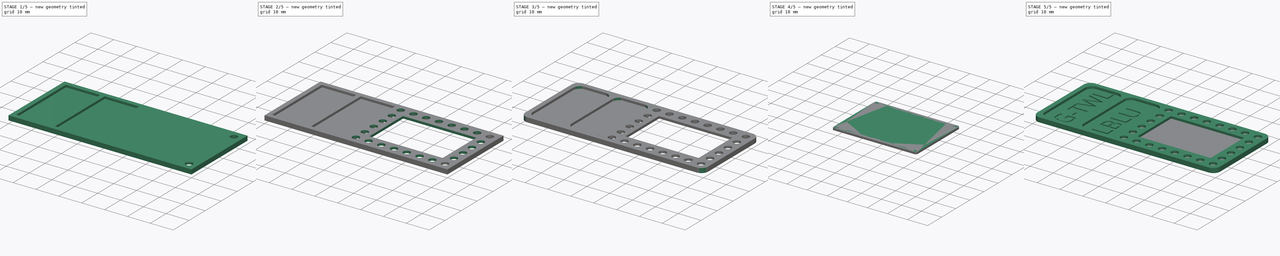
[diagram: build sequence overview — one tinted view per stage of 5, left to right]
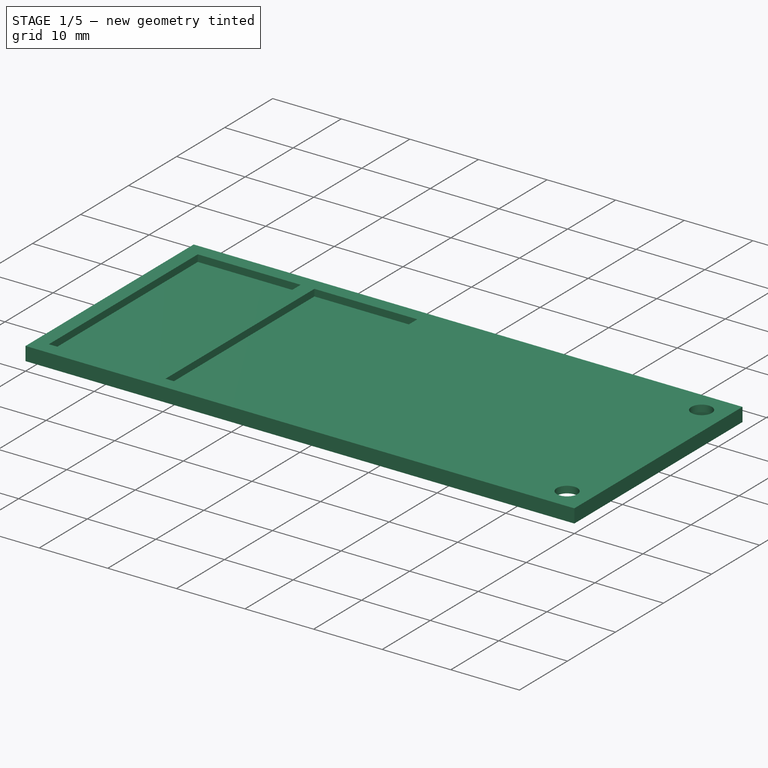
[diagram: stage 1 of 5 — iso view after this stage's code; geometry added in this stage tinted green]
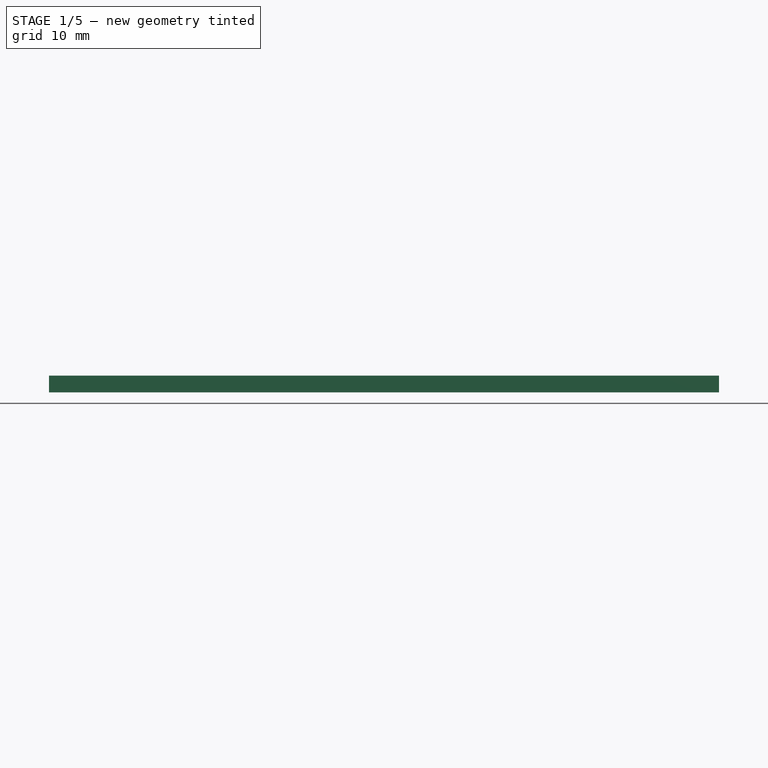
[diagram: stage 1 of 5 — front view after this stage's code; geometry added in this stage tinted green]
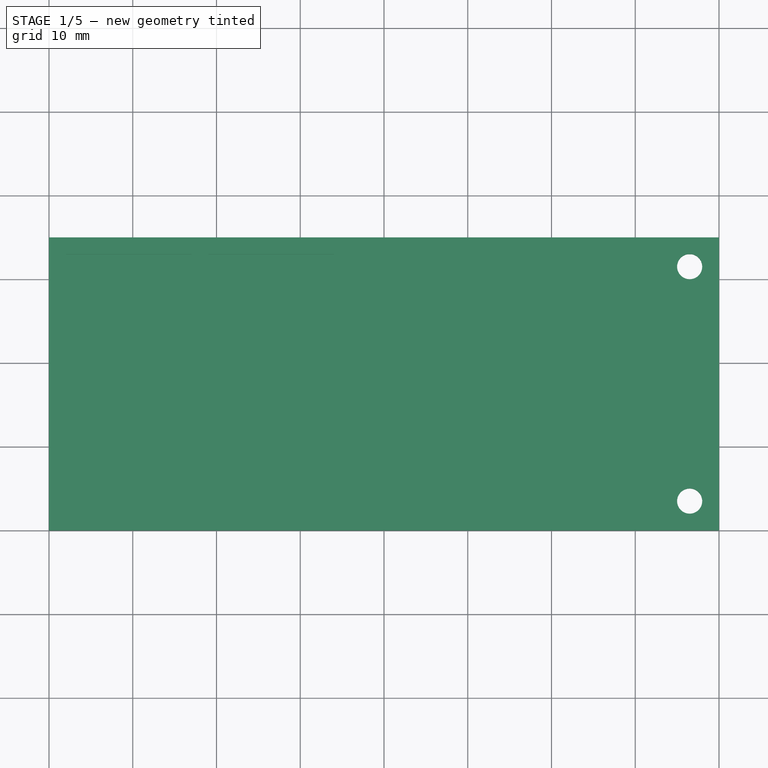
[diagram: stage 1 of 5 — top view after this stage's code; geometry added in this stage tinted green]
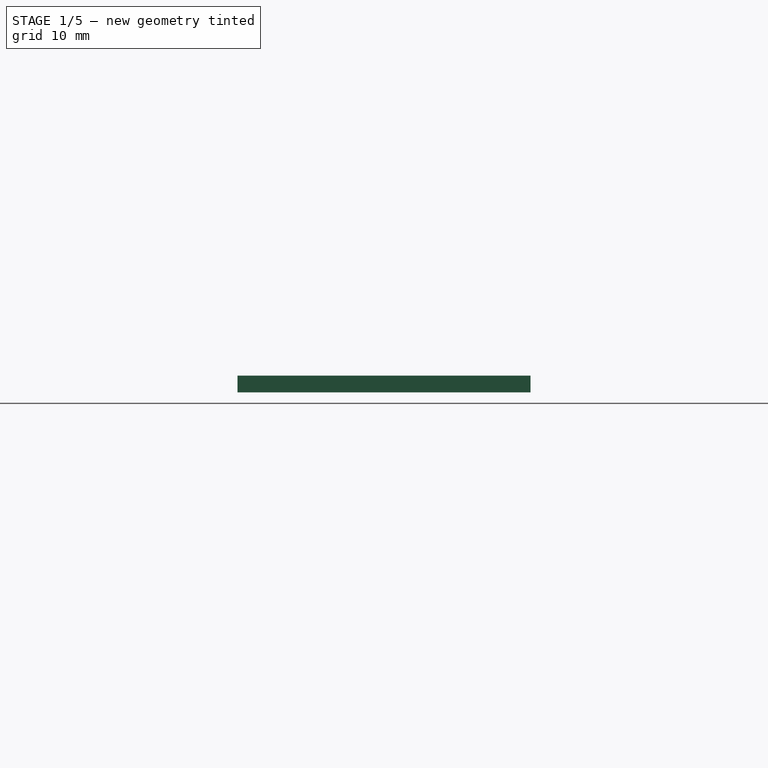
[diagram: stage 1 of 5 — right view after this stage's code; geometry added in this stage tinted green]
FCSTD DOCUMENT  (FreeCAD 0.21R33668 +26 (Git))
Label: Material Swatch
License: All rights reserved
LicenseURL: https://en.wikipedia.org/wiki/All_rights_reserved
objects: Sketcher::SketchObject×9, PartDesign::Pocket×9, PartDesign::LinearPattern×4, PartDesign::Fillet×3, PartDesign::Body×3, PartDesign::Pad×2, Part::Part2DObjectPython×2, PartDesign::ShapeBinder×2, PartDesign::FeatureBase×1
note: 49 computed .brp shape members not serialized (recipe doc carries the construction recipe); baked Part::Feature solids carry a one-line shape summary decoded from their .brp

FEATURE [Sketcher::SketchObject] Sketch
  FullyConstrained = true
  MapMode = 5
  Support = -> [XY_Plane]
  sketch-geometry (4):
    g0: LineSegment StartX=0 StartY=0 StartZ=0 EndX=80 EndY=0 EndZ=0
    g1: LineSegment StartX=80 StartY=0 StartZ=0 EndX=80 EndY=35 EndZ=0
    g2: LineSegment StartX=80 StartY=35 StartZ=0 EndX=0 EndY=35 EndZ=0
    g3: LineSegment StartX=0 StartY=35 StartZ=0 EndX=0 EndY=0 EndZ=0
  constraints (11):
    c: Coincident(g0,g1)
    c: Coincident(g1,g2)
    c: Coincident(g2,g3)
    c: Coincident(g3,g0)
    c: Horizontal(g0)
    c: Horizontal(g2)
    c: Vertical(g1)
    c: Vertical(g3)
    c: Coincident(g0,g-1)
    c: Distance(g0) = 80
    c: Distance(g1) = 35
FEATURE [PartDesign::Pad] Pad
  Direction = (0,0,1)
  Length = 2
  Length2 = 10
  Profile = -> Sketch
  ReferenceAxis = -> Sketch [N_Axis]
  Type = 0
FEATURE [Sketcher::SketchObject] Sketch001
  ExternalGeometry = -> [Pad]
  FullyConstrained = true
  MapMode = 5
  Placement = pos=(0,0,2) rot=(0,0,1;0rad)
  Support = -> [Pad]
  sketch-geometry (17):
    g0: LineSegment StartX=2 StartY=33 StartZ=0 EndX=17 EndY=33 EndZ=0
    g1: LineSegment StartX=17 StartY=33 StartZ=0 EndX=17 EndY=2 EndZ=0
    g2: LineSegment StartX=17 StartY=2 StartZ=0 EndX=2 EndY=2 EndZ=0
    g3: LineSegment StartX=2 StartY=2 StartZ=0 EndX=2 EndY=33 EndZ=0
    g4: LineSegment StartX=19 StartY=33 StartZ=0 EndX=34 EndY=33 EndZ=0
    g5: LineSegment StartX=34 StartY=33 StartZ=0 EndX=34 EndY=2 EndZ=0
    g6: LineSegment StartX=34 StartY=2 StartZ=0 EndX=19 EndY=2 EndZ=0
    g7: LineSegment StartX=19 StartY=2 StartZ=0 EndX=19 EndY=33 EndZ=0
    g8: LineSegment StartX=0 StartY=35 StartZ=0 EndX=2 EndY=35 EndZ=0
    g9: LineSegment StartX=2 StartY=35 StartZ=0 EndX=2 EndY=33 EndZ=0
    g10: LineSegment StartX=2 StartY=33 StartZ=0 EndX=0 EndY=33 EndZ=0
    g11: LineSegment StartX=0 StartY=33 StartZ=0 EndX=0 EndY=35 EndZ=0
    g12: LineSegment StartX=0 StartY=0 StartZ=0 EndX=2 EndY=0 EndZ=0
    g13: LineSegment StartX=2 StartY=0 StartZ=0 EndX=2 EndY=2 EndZ=0
    g14: LineSegment StartX=2 StartY=2 StartZ=0 EndX=0 EndY=2 EndZ=0
    g15: LineSegment StartX=0 StartY=2 StartZ=0 EndX=0 EndY=0 EndZ=0
    g16: LineSegment StartX=17 StartY=33 StartZ=0 EndX=19 EndY=33 EndZ=0
  constraints (46):
    c: Coincident(g0,g1)
    c: Coincident(g1,g2)
    c: Coincident(g2,g3)
    c: Coincident(g3,g0)
    c: Horizontal(g0)
    c: Horizontal(g2)
    c: Vertical(g1)
    c: Vertical(g3)
    c: Coincident(g4,g5)
    c: Coincident(g5,g6)
    c: Coincident(g6,g7)
    c: Coincident(g7,g4)
    c: Horizontal(g4)
    c: Horizontal(g6)
    c: Vertical(g5)
    c: Vertical(g7)
    c: Coincident(g8,g9)
    c: Coincident(g9,g10)
    c: Coincident(g10,g11)
    c: Coincident(g11,g8)
    c: Horizontal(g8)
    c: Horizontal(g10)
    c: Vertical(g9)
    c: Vertical(g11)
    c: Coincident(g8,g-3)
    c: Coincident(g9,g0)
    c: Coincident(g12,g13)
    c: Coincident(g13,g14)
    c: Coincident(g14,g15)
    c: Coincident(g15,g12)
    c: Horizontal(g12)
    c: Horizontal(g14)
    c: Vertical(g13)
    c: Vertical(g15)
    c: Coincident(g12,g-3)
    c: Coincident(g13,g2)
    c: Equal(g9,g10)
    c: Equal(g9,g13)
    c: Distance(g10) = 2
    c: Distance(g0) = 15
    c: Distance(g4) = 15
    c: Coincident(g16,g0)
    c: Coincident(g16,g4)
    c: Horizontal(g16)
    c: Equal(g7,g1)
    c: Equal(g16,g10)
FEATURE [PartDesign::Pocket] Pocket
  BaseFeature = -> Pad
  Direction = (0,0,-1)
  Length = 1
  Length2 = 5
  Profile = -> Sketch001
  ReferenceAxis = -> Sketch001 [N_Axis]
  Type = 0
FEATURE [Sketcher::SketchObject] Sketch002
  ExternalGeometry = -> [Pocket]
  FullyConstrained = true
  MapMode = 5
  Placement = pos=(0,0,0) rot=(1,0,0;3.14159rad)
  Support = -> [Pocket]
  sketch-geometry (6):
    g0: LineSegment StartX=36 StartY=-2 StartZ=0 EndX=78 EndY=-2 EndZ=0
    g1: LineSegment StartX=78 StartY=-2 StartZ=0 EndX=78 EndY=-33 EndZ=0
    g2: LineSegment StartX=78 StartY=-33 StartZ=0 EndX=36 EndY=-33 EndZ=0
    g3: LineSegment StartX=36 StartY=-33 StartZ=0 EndX=36 EndY=-2 EndZ=0
    g4: LineSegment StartX=34 StartY=-2 StartZ=0 EndX=36 EndY=-2 EndZ=0
    g5: LineSegment StartX=78 StartY=-2 StartZ=0 EndX=80 EndY=-2 EndZ=0
  constraints (17):
    c: Coincident(g0,g1)
    c: Coincident(g1,g2)
    c: Coincident(g2,g3)
    c: Coincident(g3,g0)
    c: Horizontal(g0)
    c: Horizontal(g2)
    c: Vertical(g1)
    c: Vertical(g3)
    c: Coincident(g4,g-3)
    c: Coincident(g4,g0)
    c: Horizontal(g4)
    c: Coincident(g5,g0)
    c: PointOnObject(g5,g-4)
    c: Equal(g4,g5)
    c: Horizontal(g5)
    c: Distance(g4) = 2
    c: Equal(g-3,g3)
FEATURE [PartDesign::Pocket] Pocket001
  BaseFeature = -> Pocket
  Direction = (0,0,1)
  Length = 1
  Length2 = 5
  Profile = -> Sketch002
  ReferenceAxis = -> Sketch002 [N_Axis]
  Type = 0
FEATURE [Sketcher::SketchObject] Sketch003
  ExternalGeometry = -> [Pocket001]
  FullyConstrained = true
  MapMode = 5
  Placement = pos=(0,0,1) rot=(1,0,0;3.14159rad)
  Support = -> [Pocket001]
  sketch-geometry (10):
    g0: Circle CenterX=76.5 CenterY=-3.5 CenterZ=0 NormalX=0 NormalY=0 NormalZ=1 AngleXU=0 Radius=1.5
    g1: LineSegment StartX=78 StartY=-2 StartZ=0 EndX=76.5 EndY=-2 EndZ=0
    g2: LineSegment StartX=76.5 StartY=-2 StartZ=0 EndX=76.5 EndY=-3.5 EndZ=0
    g3: LineSegment StartX=76.5 StartY=-3.5 StartZ=0 EndX=78 EndY=-3.5 EndZ=0
    g4: LineSegment StartX=78 StartY=-3.5 StartZ=0 EndX=78 EndY=-2 EndZ=0
    g5: LineSegment StartX=78 StartY=-33 StartZ=0 EndX=76.5 EndY=-33 EndZ=0
    g6: LineSegment StartX=76.5 StartY=-33 StartZ=0 EndX=76.5 EndY=-31.5 EndZ=0
    g7: LineSegment StartX=76.5 StartY=-31.5 StartZ=0 EndX=78 EndY=-31.5 EndZ=0
    g8: LineSegment StartX=78 StartY=-31.5 StartZ=0 EndX=78 EndY=-33 EndZ=0
    g9: Circle CenterX=76.5 CenterY=-31.5 CenterZ=0 NormalX=0 NormalY=0 NormalZ=1 AngleXU=0 Radius=1.5
  constraints (26):
    c: Coincident(g1,g2)
    c: Coincident(g2,g3)
    c: Coincident(g3,g4)
    c: Coincident(g4,g1)
    c: Horizontal(g1)
    c: Horizontal(g3)
    c: Vertical(g2)
    c: Vertical(g4)
    c: Coincident(g1,g-3)
    c: Coincident(g2,g0)
    c: Equal(g2,g3)
    c: Coincident(g5,g6)
    c: Coincident(g6,g7)
    c: Coincident(g7,g8)
    c: Coincident(g8,g5)
    c: Horizontal(g5)
    c: Horizontal(g7)
    c: Vertical(g6)
    c: Vertical(g8)
    c: Coincident(g5,g-4)
    c: Coincident(g9,g6)
    c: Equal(g6,g7)
    c: Equal(g3,g7)
    c: Equal(g9,g0)
    c: Diameter(g0) = 3
    c: Tangent(g0,g-3)
FEATURE [PartDesign::Pocket] Pocket002
  BaseFeature = -> Pocket001
  Direction = (0,0,1)
  Length = 5
  Length2 = 5
  Profile = -> Sketch003
  ReferenceAxis = -> Sketch003 [N_Axis]
  Type = 0
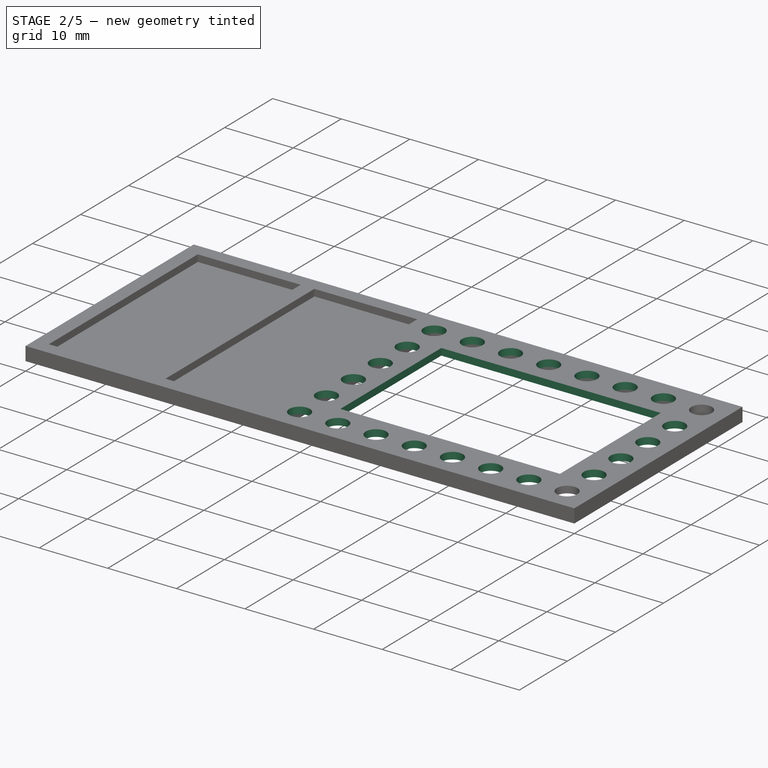
[diagram: stage 2 of 5 — iso view after this stage's code; geometry added in this stage tinted green]
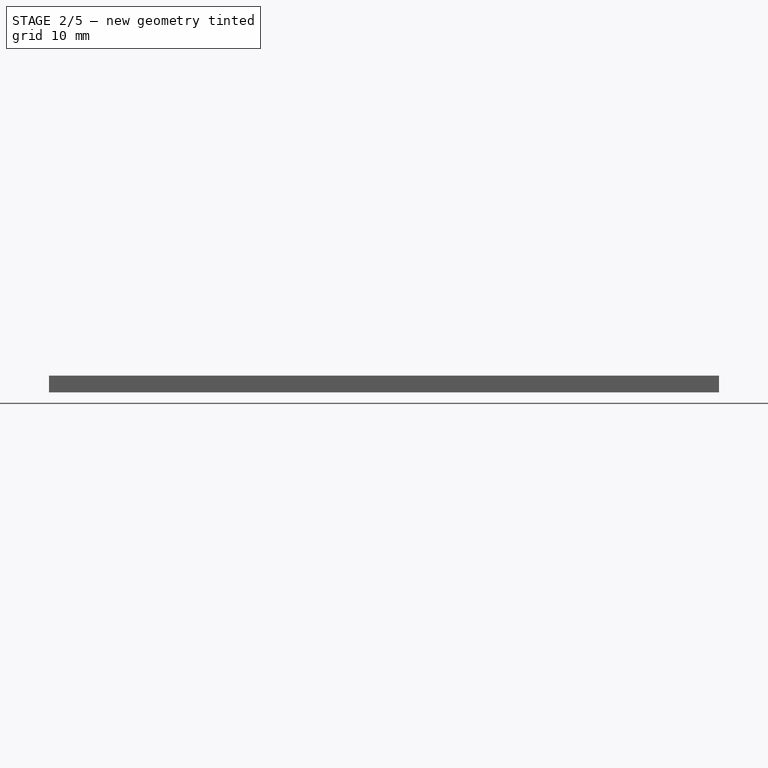
[diagram: stage 2 of 5 — front view after this stage's code; geometry added in this stage tinted green]
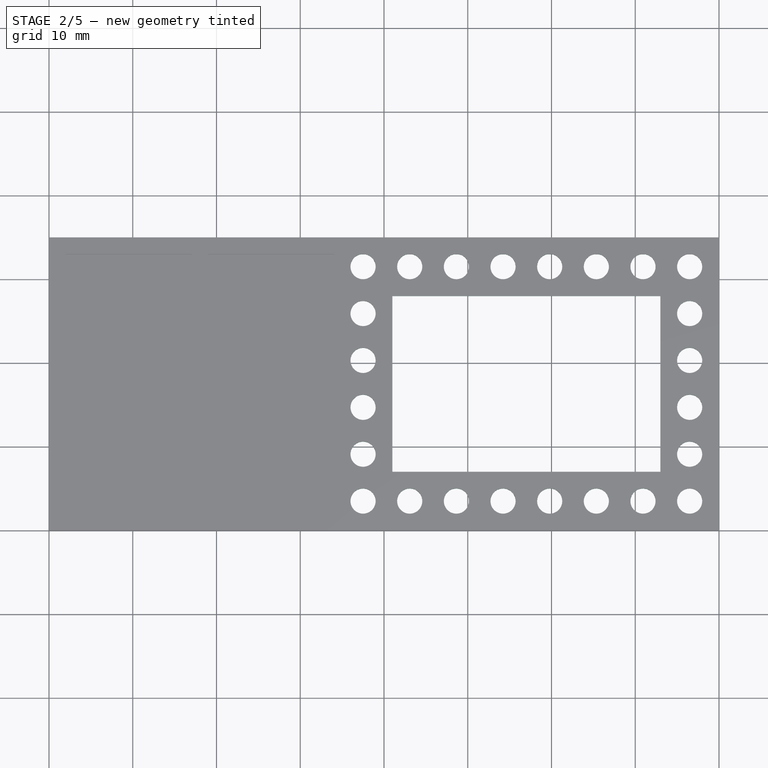
[diagram: stage 2 of 5 — top view after this stage's code; geometry added in this stage tinted green]
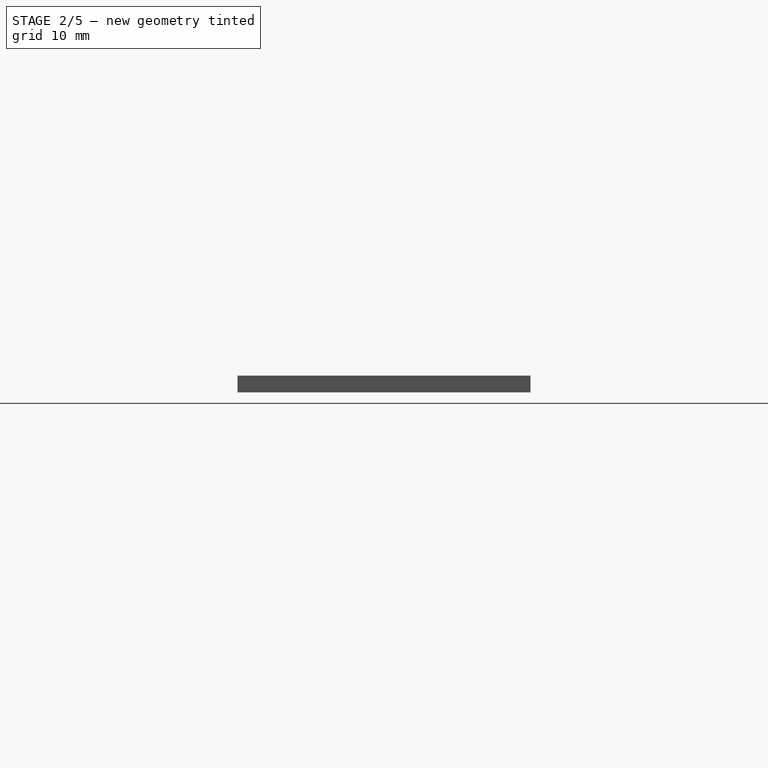
[diagram: stage 2 of 5 — right view after this stage's code; geometry added in this stage tinted green]
FEATURE [PartDesign::LinearPattern] LinearPattern
  BaseFeature = -> Pocket002
  Direction = -> Sketch003 [H_Axis]
  Length = 39
  Occurrences = 8
  Originals = -> [Pocket002]
  Reversed = true
FEATURE [Sketcher::SketchObject] Sketch004
  ExternalGeometry = -> [LinearPattern]
  FullyConstrained = true
  MapMode = 5
  Placement = pos=(0,0,1) rot=(1,0,0;3.14159rad)
  Support = -> [LinearPattern]
  sketch-geometry (2):
    g0: Circle CenterX=37.5 CenterY=-3.5 CenterZ=0 NormalX=0 NormalY=0 NormalZ=1 AngleXU=0 Radius=1.5
    g1: Circle CenterX=76.5 CenterY=-3.5 CenterZ=0 NormalX=0 NormalY=0 NormalZ=1 AngleXU=0 Radius=1.5
  constraints (4):
    c: Coincident(g0,g-3)
    c: PointOnObject(g-3,g0)
    c: Coincident(g1,g-4)
    c: PointOnObject(g-4,g1)
FEATURE [PartDesign::Pocket] Pocket003
  BaseFeature = -> LinearPattern
  Direction = (0,0,1)
  Length = 5
  Length2 = 5
  Profile = -> Sketch004
  ReferenceAxis = -> Sketch004 [N_Axis]
  Type = 0
FEATURE [PartDesign::LinearPattern] LinearPattern001
  BaseFeature = -> Pocket003
  Direction = -> Sketch004 [V_Axis]
  Length = 28
  Occurrences = 6
  Originals = -> [Pocket003]
  Reversed = true
FEATURE [Sketcher::SketchObject] Sketch005
  ExternalGeometry = -> [LinearPattern001]
  FullyConstrained = true
  MapMode = 5
  Placement = pos=(0,0,1) rot=(1,0,0;3.14159rad)
  Support = -> [LinearPattern001]
  sketch-geometry (8):
    g0: LineSegment StartX=41 StartY=-7 StartZ=0 EndX=73 EndY=-7 EndZ=0
    g1: LineSegment StartX=73 StartY=-7 StartZ=0 EndX=73 EndY=-28 EndZ=0
    g2: LineSegment StartX=73 StartY=-28 StartZ=0 EndX=41 EndY=-28 EndZ=0
    g3: LineSegment StartX=41 StartY=-28 StartZ=0 EndX=41 EndY=-7 EndZ=0
    g4: LineSegment StartX=43.0714 StartY=-5 StartZ=0 EndX=43.0714 EndY=-7 EndZ=0
    g5: LineSegment StartX=39 StartY=-9.1 StartZ=0 EndX=41 EndY=-9.1 EndZ=0
    g6: LineSegment StartX=70.9286 StartY=-30 StartZ=0 EndX=70.9286 EndY=-28 EndZ=0
    g7: LineSegment StartX=75 StartY=-25.9 StartZ=0 EndX=73 EndY=-25.9 EndZ=0
  constraints (27):
    c: Coincident(g0,g1)
    c: Coincident(g1,g2)
    c: Coincident(g2,g3)
    c: Coincident(g3,g0)
    c: Horizontal(g0)
    c: Horizontal(g2)
    c: Vertical(g1)
    c: Vertical(g3)
    c: PointOnObject(g4,g-3)
    c: PointOnObject(g4,g0)
    c: Vertical(g4)
    c: Coincident(g5,g-4)
    c: PointOnObject(g5,g3)
    c: Horizontal(g5)
    c: PointOnObject(g6,g-5)
    c: PointOnObject(g6,g2)
    c: Vertical(g6)
    c: PointOnObject(g7,g-6)
    c: PointOnObject(g7,g1)
    c: Horizontal(g7)
    c: Perpendicular(g-6,g7)
    c: Perpendicular(g-5,g6)
    c: Perpendicular(g-3,g4)
    c: Equal(g4,g5)
    c: Equal(g6,g7)
    c: Equal(g7,g4)
    c: Distance(g4) = 2
FEATURE [PartDesign::Pocket] Pocket004
  BaseFeature = -> LinearPattern001
  Direction = (0,0,1)
  Length = 5
  Length2 = 5
  Profile = -> Sketch005
  ReferenceAxis = -> Sketch005 [N_Axis]
  Type = 0
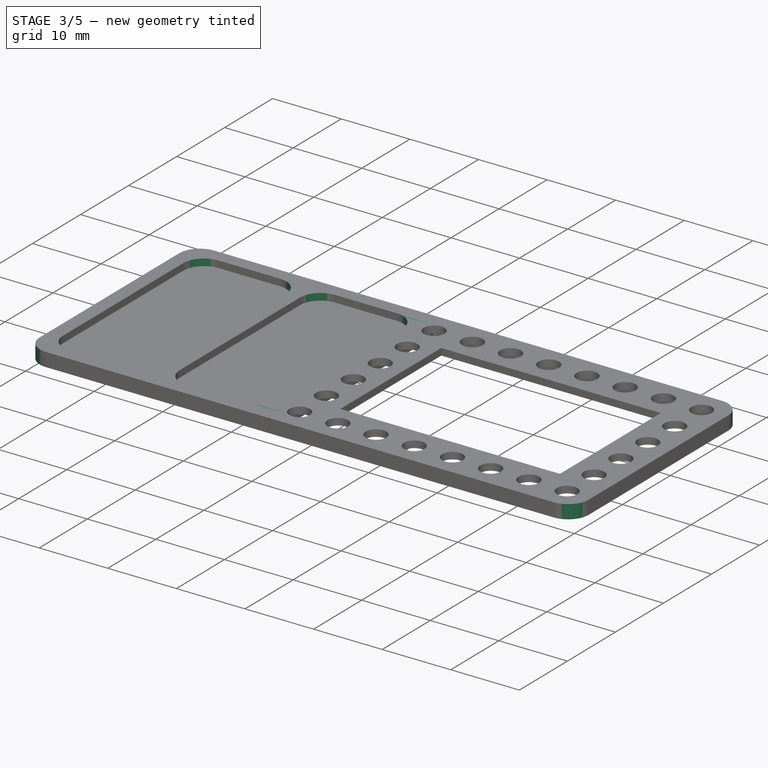
[diagram: stage 3 of 5 — iso view after this stage's code; geometry added in this stage tinted green]
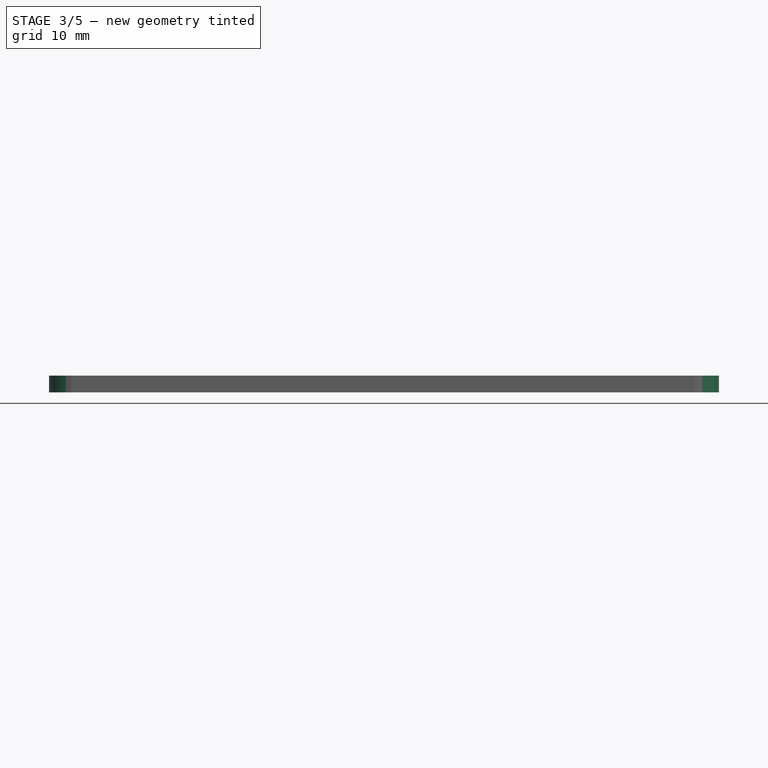
[diagram: stage 3 of 5 — front view after this stage's code; geometry added in this stage tinted green]
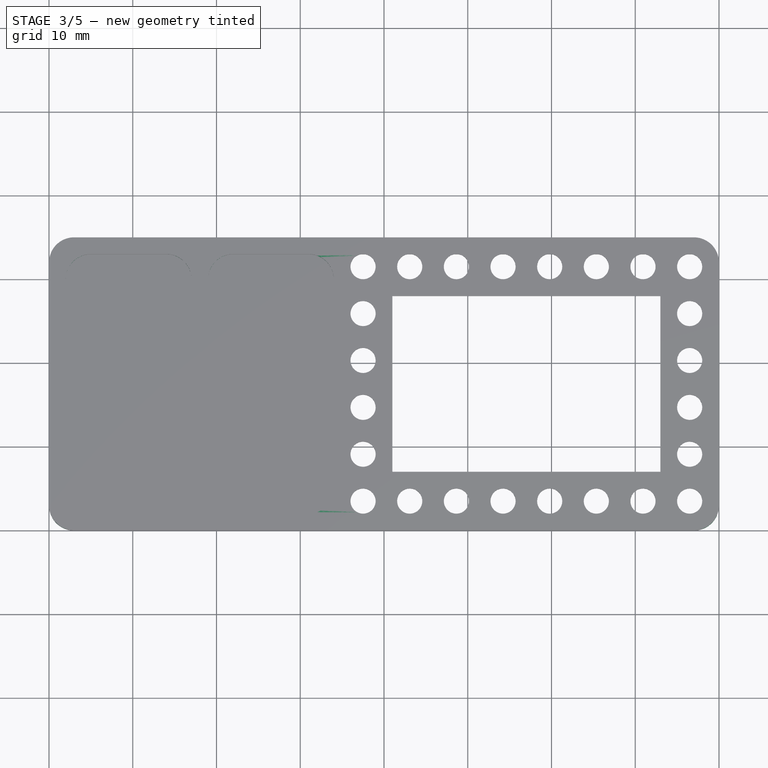
[diagram: stage 3 of 5 — top view after this stage's code; geometry added in this stage tinted green]
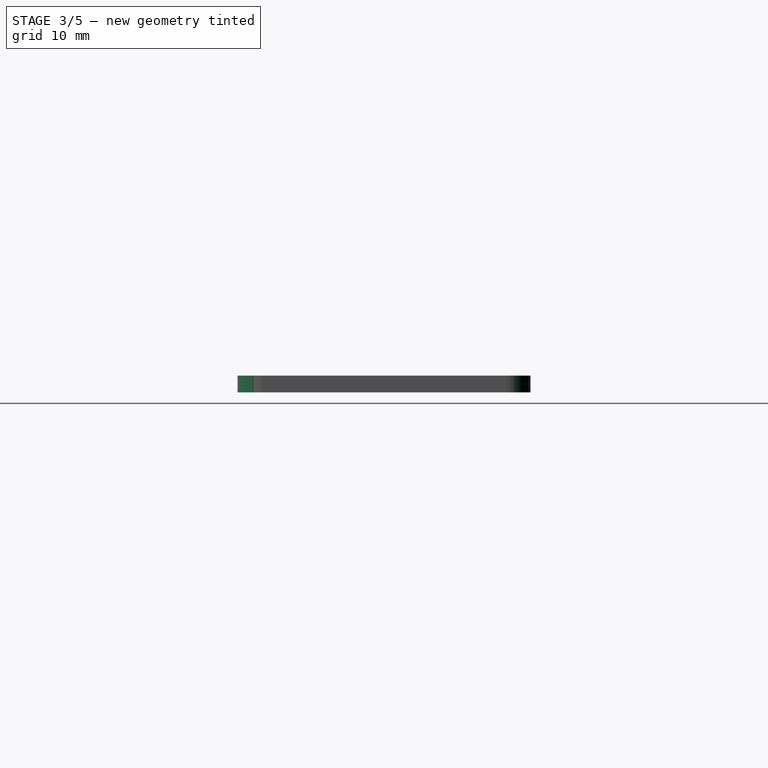
[diagram: stage 3 of 5 — right view after this stage's code; geometry added in this stage tinted green]
FEATURE [PartDesign::Fillet] Fillet
  Base = -> Pocket004 [Edge2,Edge8,Edge5,Edge1]
  BaseFeature = -> Pocket004
  Radius = 3
  SupportTransform = false
  UseAllEdges = false
FEATURE [PartDesign::Fillet] Fillet001
  Base = -> Fillet [Edge66,Edge76,Edge84,Edge65]
  BaseFeature = -> Fillet
  Radius = 1
  SupportTransform = false
  UseAllEdges = false
FEATURE [PartDesign::Fillet] Fillet002
  Base = -> Fillet001 [Edge192,Edge196,Edge204,Edge200,Edge191,Edge199,Edge194,Edge202]
  BaseFeature = -> Fillet001
  Radius = 3
  SupportTransform = false
  UseAllEdges = false
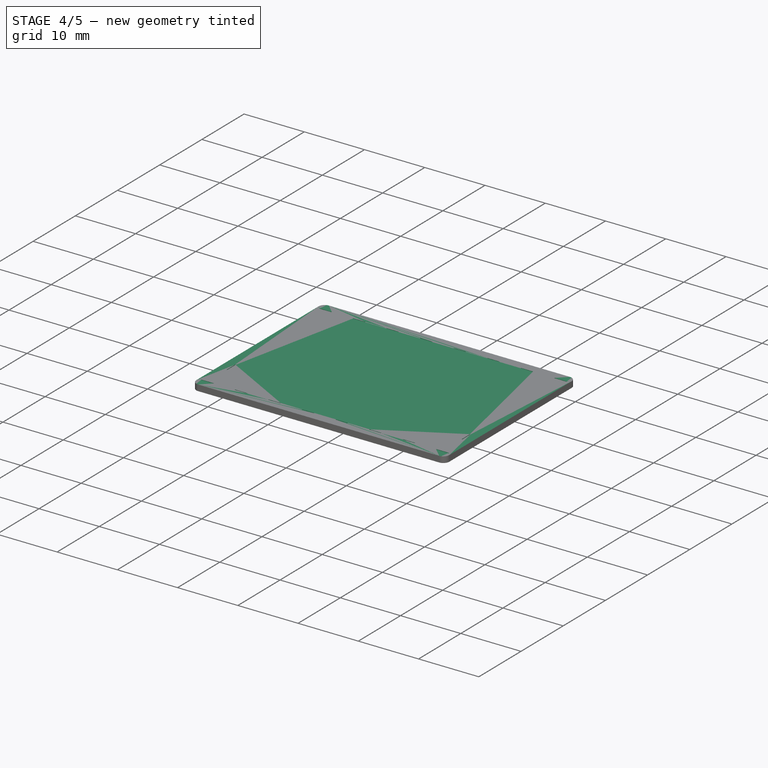
[diagram: stage 4 of 5 — iso view after this stage's code; geometry added in this stage tinted green]
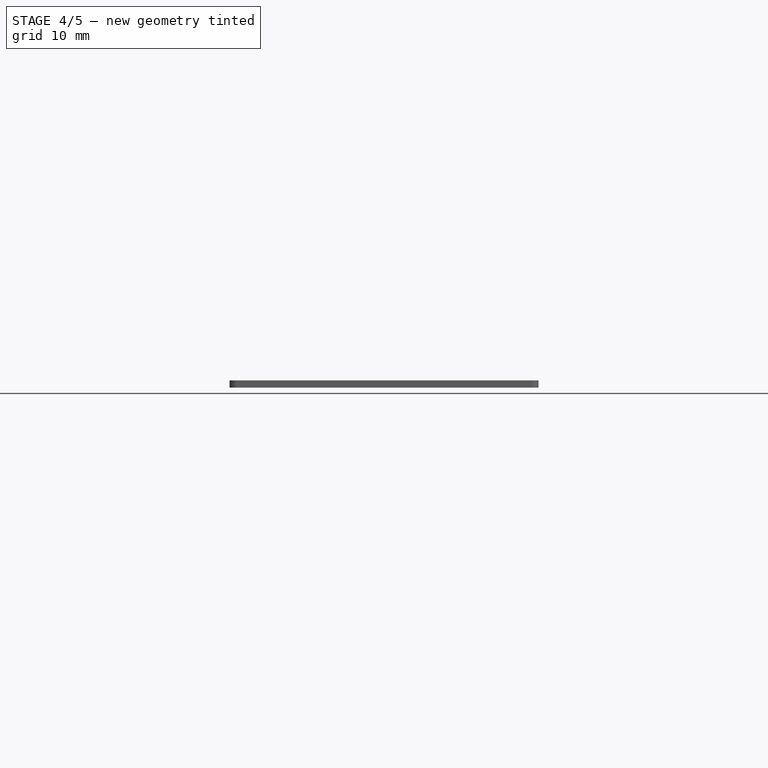
[diagram: stage 4 of 5 — front view after this stage's code; geometry added in this stage tinted green]
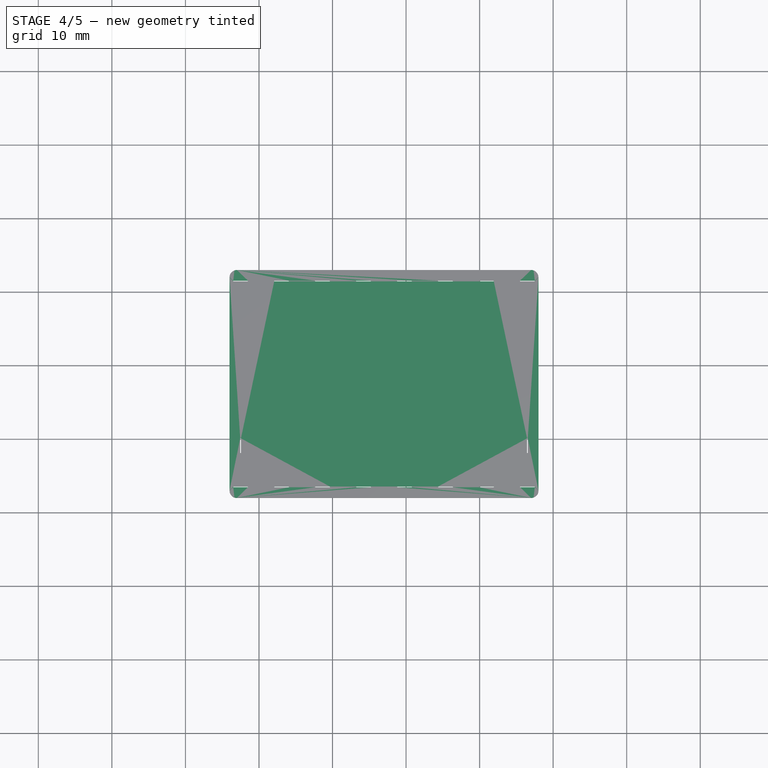
[diagram: stage 4 of 5 — top view after this stage's code; geometry added in this stage tinted green]
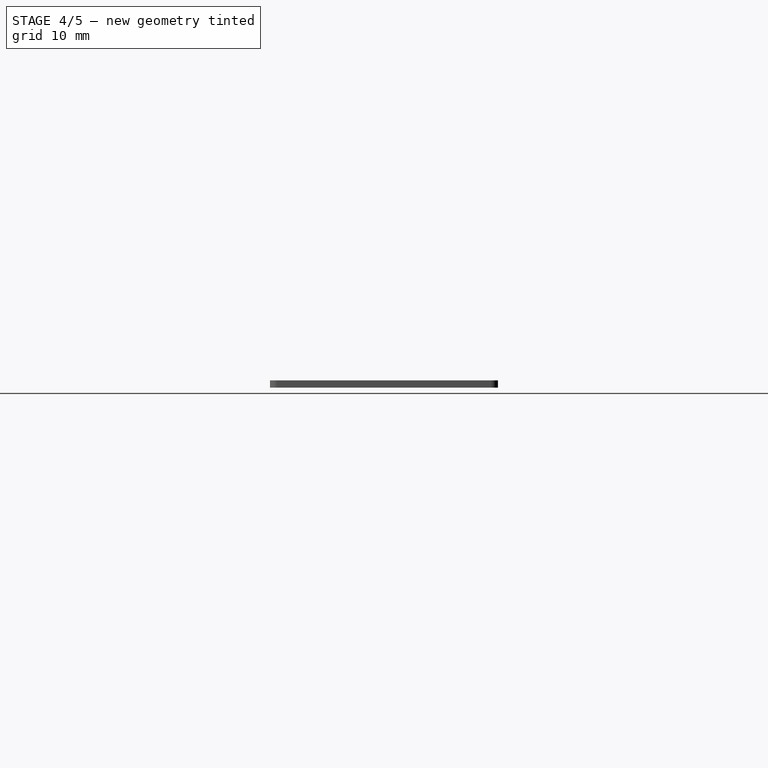
[diagram: stage 4 of 5 — right view after this stage's code; geometry added in this stage tinted green]
FEATURE [PartDesign::Body] Body001  label="Labeled Swatch"
  Group = -> [Clone,ShapeString,ShapeString001,Pocket005,Pocket006]
  Origin = -> Origin001
  Placement = pos=(0,-50,0) rot=(0,0,1;0rad)
  Tip = -> Pocket006
FEATURE [PartDesign::ShapeBinder] ShapeBinder
  Support = -> [Fillet002]
  TraceSupport = false
FEATURE [Sketcher::SketchObject] Sketch006
  ExternalGeometry = -> [ShapeBinder]
  FullyConstrained = true
  MapMode = 5
  Placement = pos=(0,0,0) rot=(1,0,0;3.14159rad)
  Support = -> [ShapeBinder]
  sketch-geometry (8):
    g0: LineSegment StartX=37 StartY=-2 StartZ=0 EndX=77 EndY=-2 EndZ=0
    g1: LineSegment StartX=78 StartY=-3 StartZ=0 EndX=78 EndY=-32 EndZ=0
    g2: LineSegment StartX=77 StartY=-33 StartZ=0 EndX=37 EndY=-33 EndZ=0
    g3: LineSegment StartX=36 StartY=-32 StartZ=0 EndX=36 EndY=-3 EndZ=0
    g4: ArcOfCircle CenterX=37 CenterY=-3 CenterZ=0 NormalX=0 NormalY=0 NormalZ=1 AngleXU=0 Radius=1 StartAngle=1.5708 EndAngle=3.14159
    g5: ArcOfCircle CenterX=77 CenterY=-3 CenterZ=0 NormalX=0 NormalY=0 NormalZ=1 AngleXU=0 Radius=1 StartAngle=0 EndAngle=1.5708
    g6: ArcOfCircle CenterX=77 CenterY=-32 CenterZ=0 NormalX=0 NormalY=0 NormalZ=1 AngleXU=0 Radius=1 StartAngle=4.71239 EndAngle=6.28319
    g7: ArcOfCircle CenterX=37 CenterY=-32 CenterZ=0 NormalX=0 NormalY=0 NormalZ=1 AngleXU=0 Radius=1 StartAngle=3.14159 EndAngle=4.71239
  constraints (14):
    c: Tangent(g3,g4) = 1.5708
    c: Tangent(g0,g4) = 1.5708
    c: Tangent(g0,g5) = 1.5708
    c: Tangent(g1,g5) = 1.5708
    c: Tangent(g1,g6) = 1.5708
    c: Tangent(g2,g6) = 1.5708
    c: Tangent(g3,g7) = 1.5708
    c: Tangent(g2,g7) = 1.5708
    c: Coincident(g3,g-3)
    c: Coincident(g0,g-4)
    c: Coincident(g1,g-5)
    c: Coincident(g1,g-5)
    c: Coincident(g2,g-6)
    c: Coincident(g3,g-3)
FEATURE [PartDesign::Pad] Pad001
  Direction = (0,0,-1)
  Length = 1
  Length2 = 10
  Profile = -> Sketch006
  ReferenceAxis = -> Sketch006 [N_Axis]
  Reversed = true
  Type = 0
FEATURE [PartDesign::ShapeBinder] ShapeBinder001
  Support = -> [Fillet002]
  TraceSupport = false
FEATURE [Sketcher::SketchObject] Sketch007
  ExternalGeometry = -> [ShapeBinder001]
  FullyConstrained = true
  MapMode = 5
  Placement = pos=(0,0,1) rot=(0,0,1;0rad)
  Support = -> [Pad001]
  sketch-geometry (10):
    g0: LineSegment StartX=36.5 StartY=3.45 StartZ=0 EndX=36.5 EndY=3.55 EndZ=0
    g1: LineSegment StartX=36.5 StartY=3.55 StartZ=0 EndX=38.5 EndY=3.55 EndZ=0
    g2: LineSegment StartX=38.5 StartY=3.55 StartZ=0 EndX=38.5 EndY=3.45 EndZ=0
    g3: LineSegment StartX=38.5 StartY=3.45 StartZ=0 EndX=36.5 EndY=3.45 EndZ=0
    g4: GeomPoint X=37.5 Y=3.5 Z=0
    g5: LineSegment StartX=36.5 StartY=31.45 StartZ=0 EndX=36.5 EndY=31.55 EndZ=0
    g6: LineSegment StartX=36.5 StartY=31.55 StartZ=0 EndX=38.5 EndY=31.55 EndZ=0
    g7: LineSegment StartX=38.5 StartY=31.55 StartZ=0 EndX=38.5 EndY=31.45 EndZ=0
    g8: LineSegment StartX=38.5 StartY=31.45 StartZ=0 EndX=36.5 EndY=31.45 EndZ=0
    g9: GeomPoint X=37.5 Y=31.5 Z=0
  constraints (24):
    c: Coincident(g0,g1)
    c: Coincident(g1,g2)
    c: Coincident(g2,g3)
    c: Coincident(g3,g0)
    c: Horizontal(g1)
    c: Horizontal(g3)
    c: Vertical(g0)
    c: Vertical(g2)
    c: Symmetric(g1,g0,g4)
    c: Coincident(g4,g-4)
    c: Coincident(g5,g6)
    c: Coincident(g6,g7)
    c: Coincident(g7,g8)
    c: Coincident(g8,g5)
    c: Horizontal(g6)
    c: Horizontal(g8)
    c: Vertical(g5)
    c: Vertical(g7)
    c: Symmetric(g6,g5,g9)
    c: Coincident(g9,g-3)
    c: Equal(g2,g7)
    c: Distance(g7) = 0.1
    c: Equal(g1,g8)
    c: Distance(g6) = 2
FEATURE [PartDesign::Pocket] Pocket007
  BaseFeature = -> Pad001
  Direction = (0,0,-1)
  Length = 5
  Length2 = 5
  Profile = -> Sketch007
  ReferenceAxis = -> Sketch007 [N_Axis]
  Type = 0
FEATURE [PartDesign::LinearPattern] LinearPattern002
  BaseFeature = -> Pocket007
  Direction = -> Sketch007 [H_Axis]
  Length = 39
  Occurrences = 8
  Originals = -> [Pocket007]
FEATURE [Sketcher::SketchObject] Sketch008
  ExternalGeometry = -> [ShapeBinder001]
  FullyConstrained = true
  MapMode = 5
  Placement = pos=(0,0,1) rot=(0,0,1;0rad)
  Support = -> [LinearPattern002]
  sketch-geometry (10):
    g0: LineSegment StartX=37.45 StartY=10.1 StartZ=0 EndX=37.45 EndY=8.1 EndZ=0
    g1: LineSegment StartX=37.45 StartY=8.1 StartZ=0 EndX=37.55 EndY=8.1 EndZ=0
    g2: LineSegment StartX=37.55 StartY=8.1 StartZ=0 EndX=37.55 EndY=10.1 EndZ=0
    g3: LineSegment StartX=37.55 StartY=10.1 StartZ=0 EndX=37.45 EndY=10.1 EndZ=0
    g4: GeomPoint X=37.5 Y=9.1 Z=0
    g5: LineSegment StartX=76.45 StartY=10.1 StartZ=0 EndX=76.45 EndY=8.1 EndZ=0
    g6: LineSegment StartX=76.45 StartY=8.1 StartZ=0 EndX=76.55 EndY=8.1 EndZ=0
    g7: LineSegment StartX=76.55 StartY=8.1 StartZ=0 EndX=76.55 EndY=10.1 EndZ=0
    g8: LineSegment StartX=76.55 StartY=10.1 StartZ=0 EndX=76.45 EndY=10.1 EndZ=0
    g9: GeomPoint X=76.5 Y=9.1 Z=0
  constraints (24):
    c: Coincident(g0,g1)
    c: Coincident(g1,g2)
    c: Coincident(g2,g3)
    c: Coincident(g3,g0)
    c: Horizontal(g1)
    c: Horizontal(g3)
    c: Vertical(g0)
    c: Vertical(g2)
    c: Symmetric(g1,g0,g4)
    c: Coincident(g4,g-3)
    c: Coincident(g5,g6)
    c: Coincident(g6,g7)
    c: Coincident(g7,g8)
    c: Coincident(g8,g5)
    c: Horizontal(g6)
    c: Horizontal(g8)
    c: Vertical(g5)
    c: Vertical(g7)
    c: Symmetric(g6,g5,g9)
    c: Coincident(g9,g-4)
    c: Equal(g3,g8)
    c: Equal(g5,g2)
    c: Distance(g7) = 2
    c: Distance(g1) = 0.1
FEATURE [PartDesign::Pocket] Pocket008
  BaseFeature = -> LinearPattern002
  Direction = (0,0,-1)
  Length = 5
  Length2 = 5
  Profile = -> Sketch008
  ReferenceAxis = -> Sketch008 [N_Axis]
  Type = 0
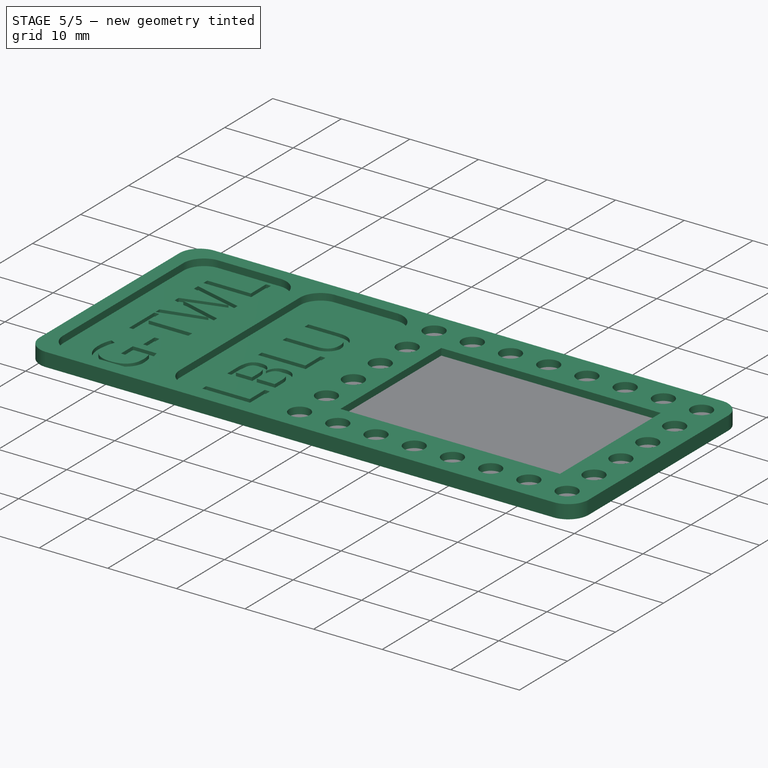
[diagram: stage 5 of 5 — iso view after this stage's code; geometry added in this stage tinted green]
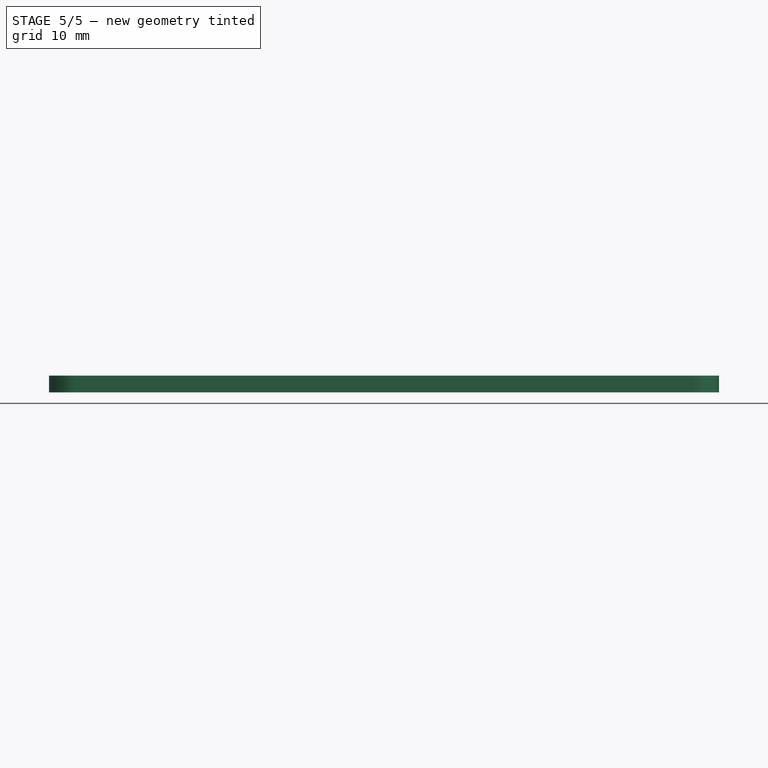
[diagram: stage 5 of 5 — front view after this stage's code; geometry added in this stage tinted green]
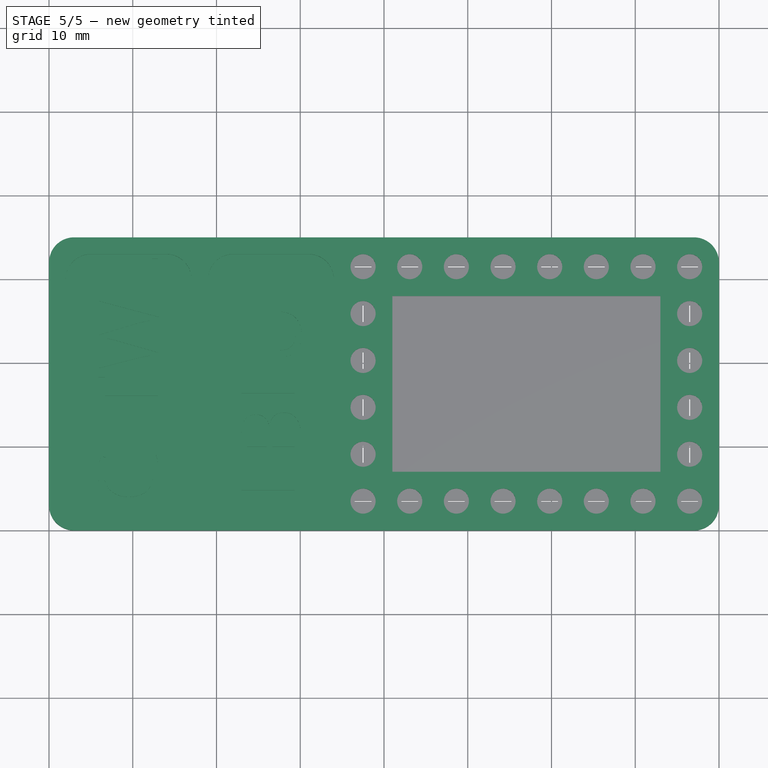
[diagram: stage 5 of 5 — top view after this stage's code; geometry added in this stage tinted green]
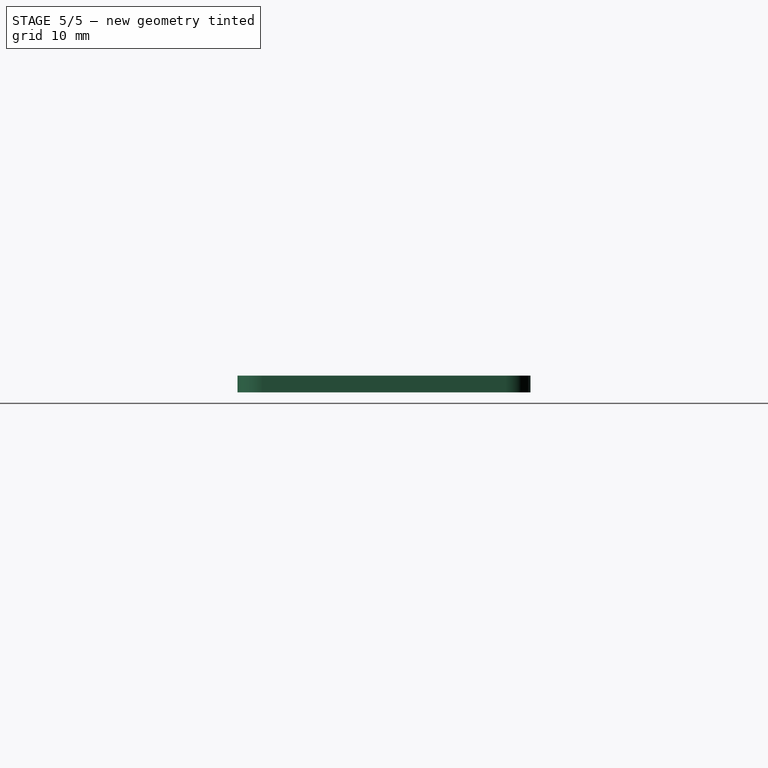
[diagram: stage 5 of 5 — right view after this stage's code; geometry added in this stage tinted green]
FEATURE [PartDesign::Body] Body  label="Material Swatch Base"
  Group = -> [Sketch,Pad,Sketch001,Pocket,Sketch002,Pocket001,Sketch003,Pocket002,LinearPattern,Sketch004,Pocket003,LinearPattern001,Sketch005,Pocket004,Fillet,Fillet001,Fillet002]
  Origin = -> Origin
  Tip = -> Fillet002
FEATURE [PartDesign::FeatureBase] Clone
  BaseFeature = -> Body
FEATURE [Part::Part2DObjectPython] ShapeString  label="Material Type"  # Draft 2D object (typed FeaturePython)
  FontFile = F:/16 Bit Git Repro/16 Bit Store/Font/OpenSans-Regular.ttf
  MakeFace = true
  Placement = pos=(13.04,2.56,5) rot=(0,0,1;1.5708rad)
  Size = 9
  String = G-TWL
  Tracking = 0
FEATURE [Part::Part2DObjectPython] ShapeString001  label="Material Color"  # Draft 2D object (typed FeaturePython)
  FontFile = F:/16 Bit Git Repro/16 Bit Store/Font/OpenSans-Regular.ttf
  MakeFace = true
  Placement = pos=(30.04,3.03,5) rot=(0,0,1;1.5708rad)
  Size = 9
  String = LBLU
  Tracking = 0
FEATURE [PartDesign::Pocket] Pocket005
  BaseFeature = -> Clone
  Direction = (0,0,-1)
  Length = 0
  Length2 = 5
  Offset = 0.5
  Profile = -> ShapeString
  ReferenceAxis = -> ShapeString [N_Axis]
  Type = 3
  UpToFace = -> Clone [Face54]
FEATURE [PartDesign::Pocket] Pocket006
  BaseFeature = -> Pocket005
  Direction = (0,0,-1)
  Length = 0
  Length2 = 5
  Offset = 0.5
  Profile = -> ShapeString001
  ReferenceAxis = -> ShapeString001 [N_Axis]
  Type = 3
  UpToFace = -> Pocket005 [Face61]
FEATURE [PartDesign::LinearPattern] LinearPattern003
  BaseFeature = -> Pocket008
  Direction = -> Sketch008 [V_Axis]
  Length = 16.8
  Occurrences = 4
  Originals = -> [Pocket008]
FEATURE [PartDesign::Body] Body002  label="Material Pattern"
  Group = -> [ShapeBinder,Sketch006,Pad001,ShapeBinder001,Sketch007,Pocket007,LinearPattern002,Sketch008,Pocket008,LinearPattern003]
  Origin = -> Origin002
  Tip = -> LinearPattern003
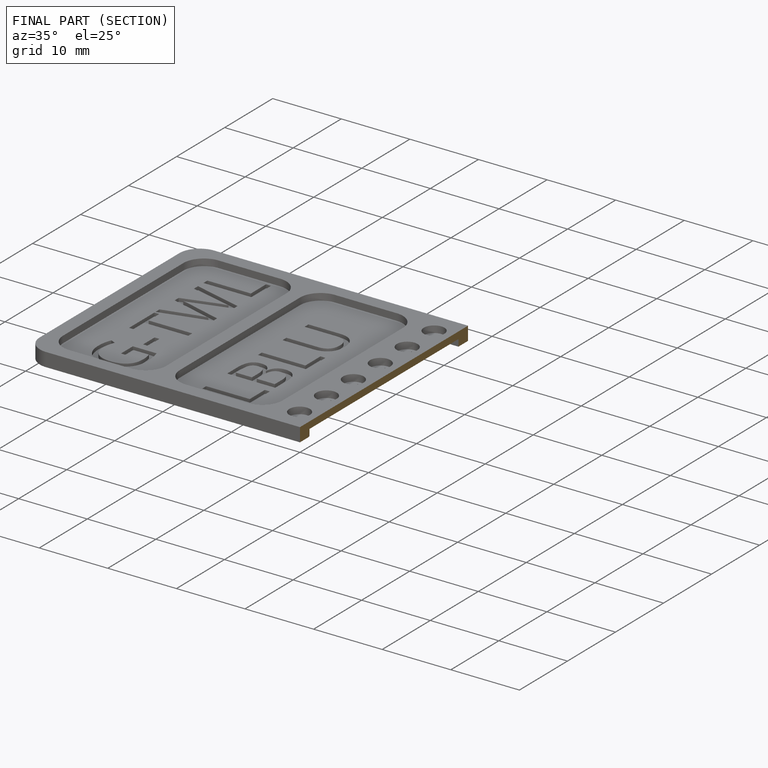
[diagram: finished part — half-section view (interior)]
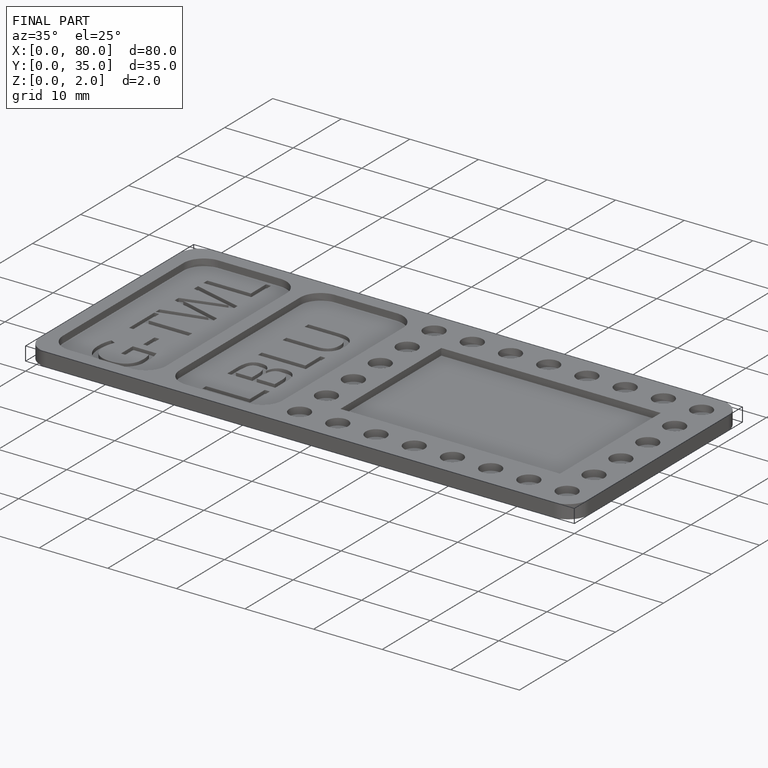
[diagram: finished part — iso view with bounding-box wireframe]
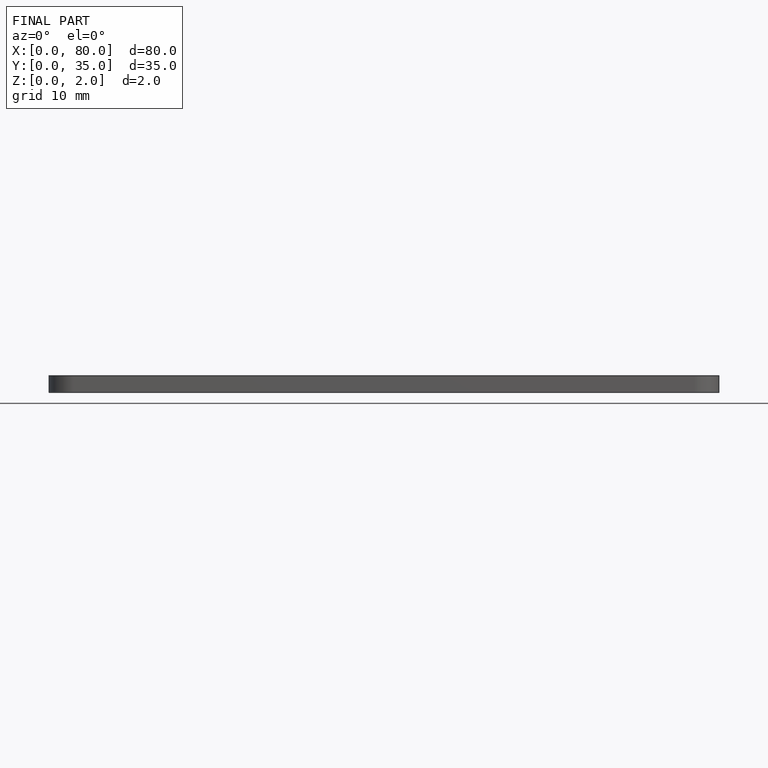
[diagram: finished part — front view with bounding-box wireframe]
